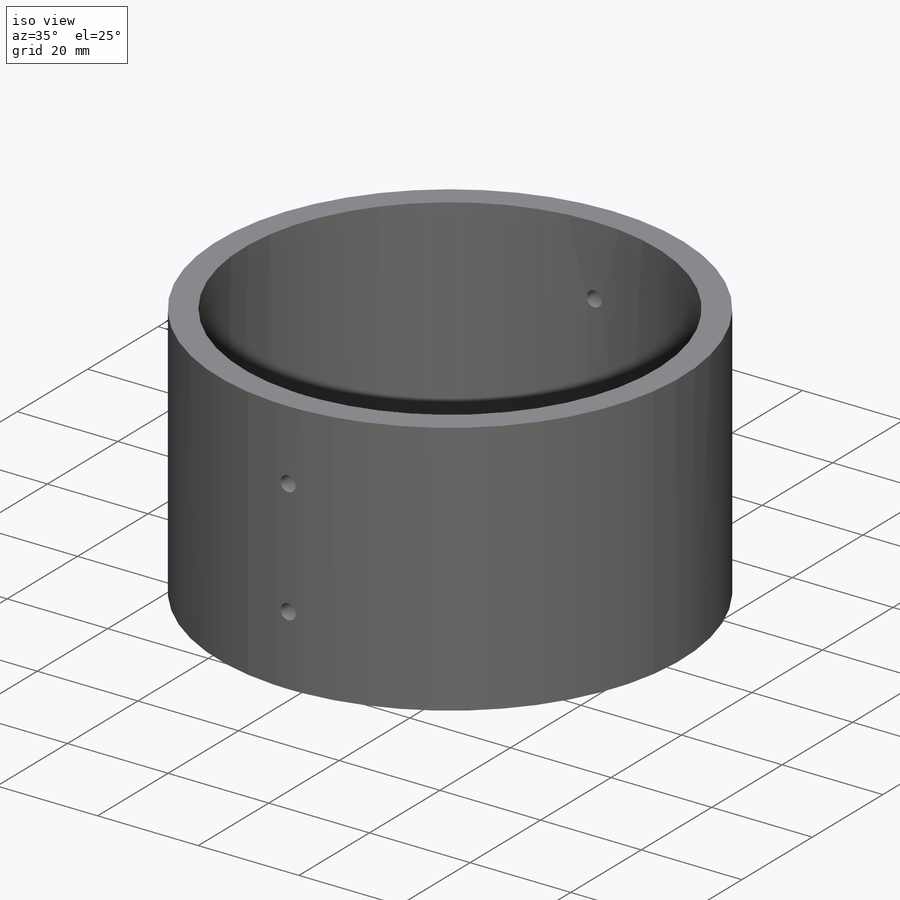
[diagram: iso view]
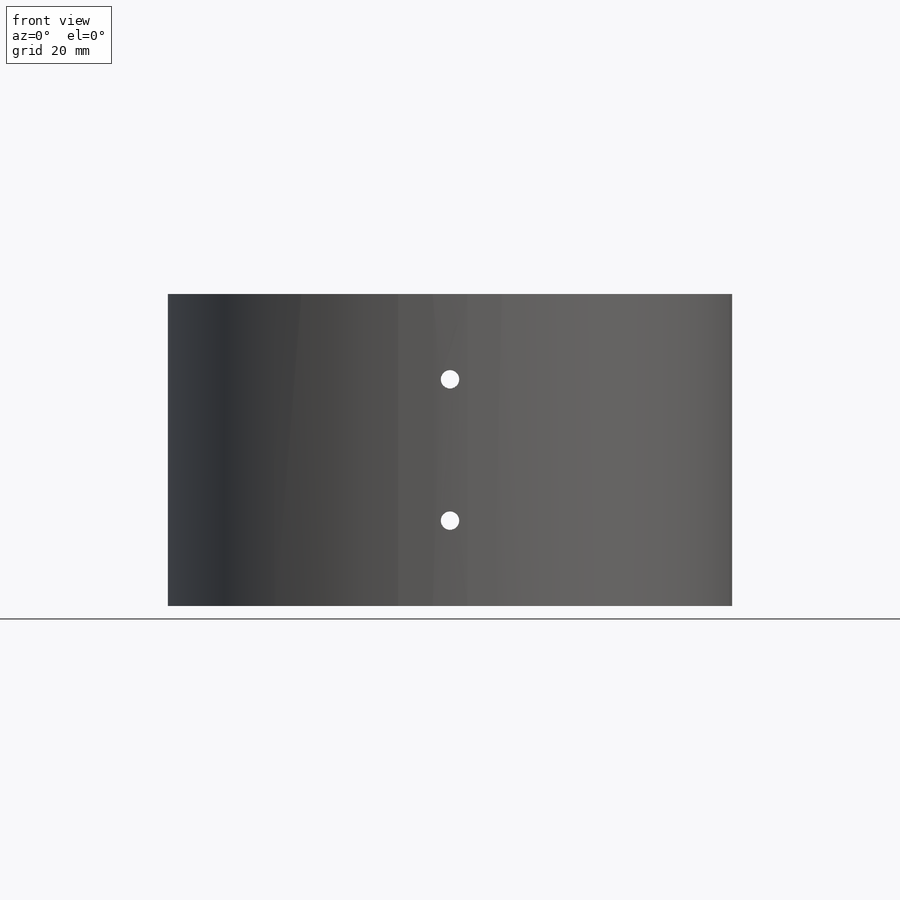
[diagram: front view]
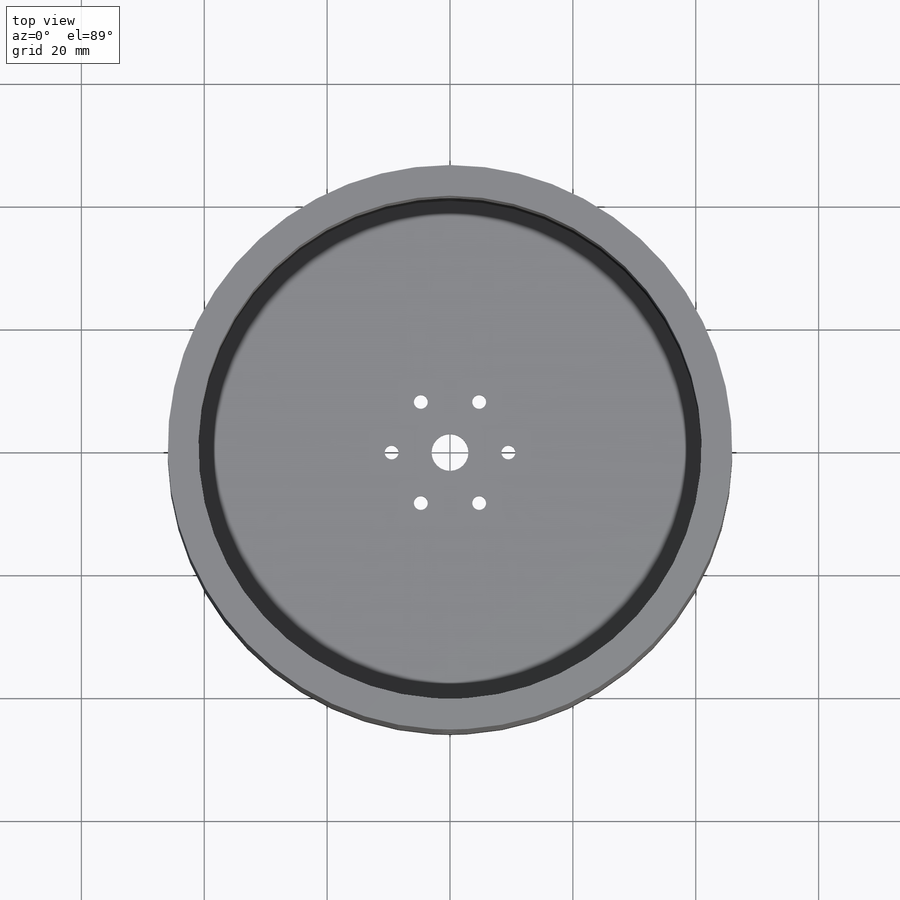
[diagram: top view]
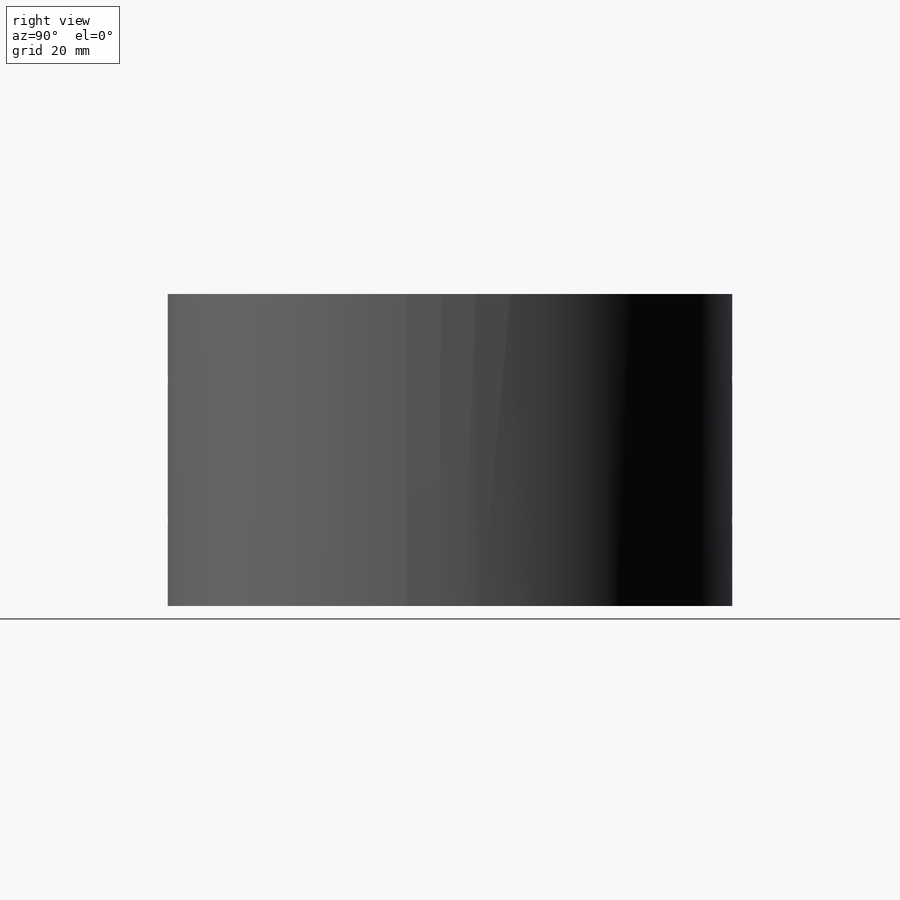
[diagram: right view]
SOLIDWORKS PART (.sldprt)
format: sldprt  version: not decoded by parser v0  size: 285,184 bytes
history: native  units: mm
features: sketch x10, thread x6, extrude x3, cut_extrude x3, material x1, hole x1 (+12 scaffold rows collapsed)
feature tree (36):
  scaffold x12  (default folders/planes/origin — collapsed)
  material  "Material <not specified>"
  sketch  "Sketch1"  dims[D1=91.9mm]
  extrude  "Boss-Extrude1"  Depth=3mm
  sketch  "Sketch2"  dims[D1=5.0mm]
  extrude  "Boss-Extrude2"  Depth=22.4mm
  sketch  "Sketch3"  dims[D1=3.0mm]
  sketch  "Sketch6"  dims[D1=19.0mm D2=~31.345057mm]
  hole  "#4-40 Tapped Hole3"  Diameter=2.2606mm Depth=7.6mm
  sketch  "Sketch10"  dims[D1=6.0]
  sketch  "Sketch9"  dims[hole-wizard template sketch: 50 standard entries collapsed; hole parameters above]
  thread  "Hole Thread9"  Diameter=3mm  [1 undecoded]
  thread  "Hole Thread10"  Diameter=3mm  [1 undecoded]
  thread  "Hole Thread11"  Diameter=3mm  [1 undecoded]
  thread  "Hole Thread12"  Diameter=3mm  [1 undecoded]
  thread  "Hole Thread13"  Diameter=3mm  [1 undecoded]
  thread  "Hole Thread14"  Diameter=3mm  [1 undecoded]
  sketch  "Sketch11"  dims[c1.D2=3.0mm c1.D3=1.5mm c1.D1=13.9mm c2.D2=~9.748196mm c2.D3=11.5mm]
  cut_extrude  "Cut-Extrude1"  [1 undecoded]
  sketch  "Sketch12"  dims[D1=81.9mm]
  extrude  "Boss-Extrude3"  Depth=25.4mm
  sketch  "Sketch14"  dims[c1.D2=3.0mm c1.D1=23.0mm c2.D2=~19.835603mm]
  cut_extrude  "Cut-Extrude2"  [1 undecoded]
  sketch  "Sketch15"  dims[D1=6.0mm]
  cut_extrude  "Cut-Extrude3"  Depth=10mm
decode coverage: 21 of 23 modeling features carry decoded parameters
note: ~ marks probable driven/reference dimensions
note: 8 parameter values undecoded
note: suppression state not decoded; provenance and decode notes live in map.json
